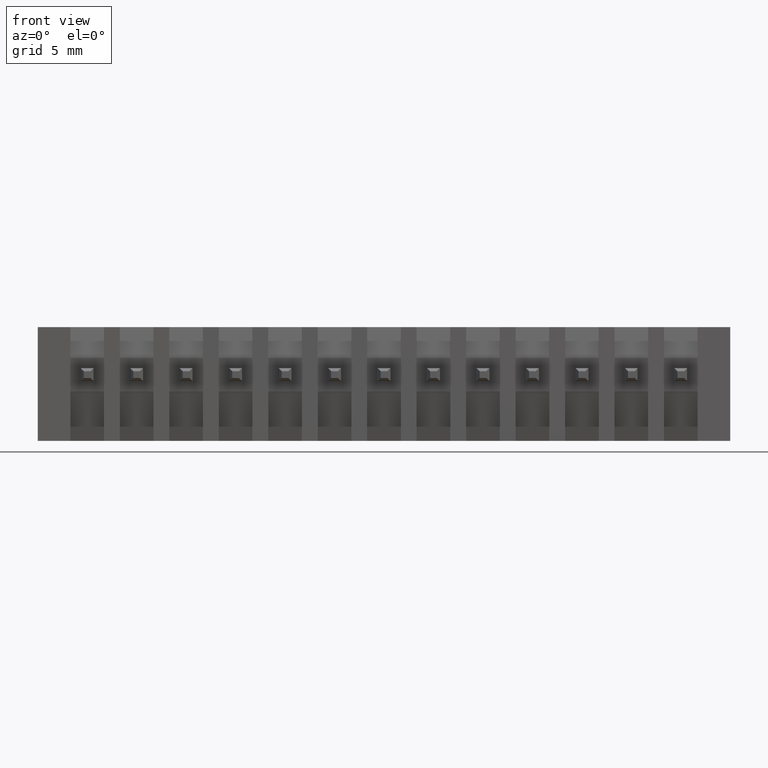
[diagram: clean part render]
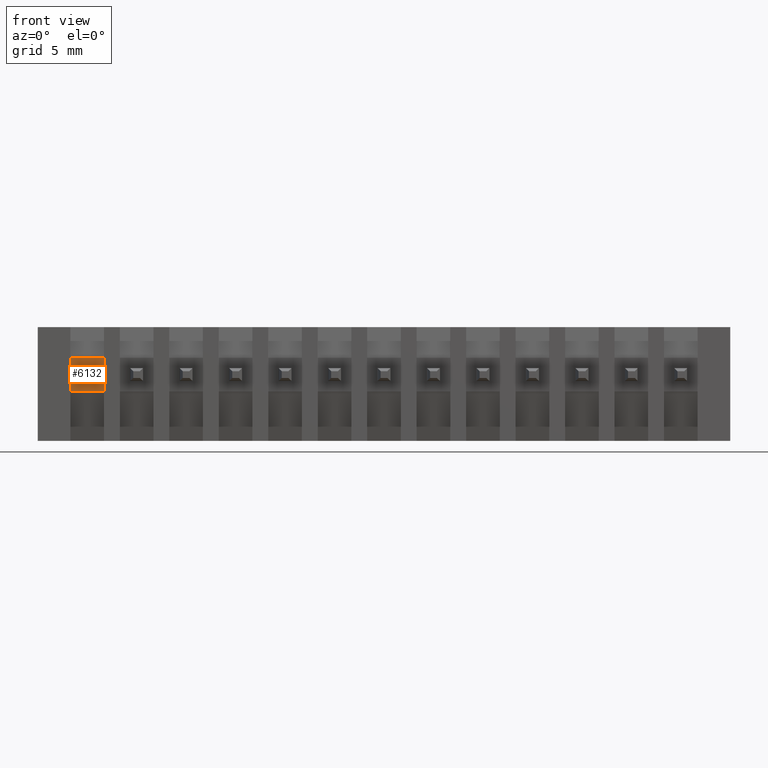
[diagram: same view with one face highlighted and labeled with its STEP entity id]
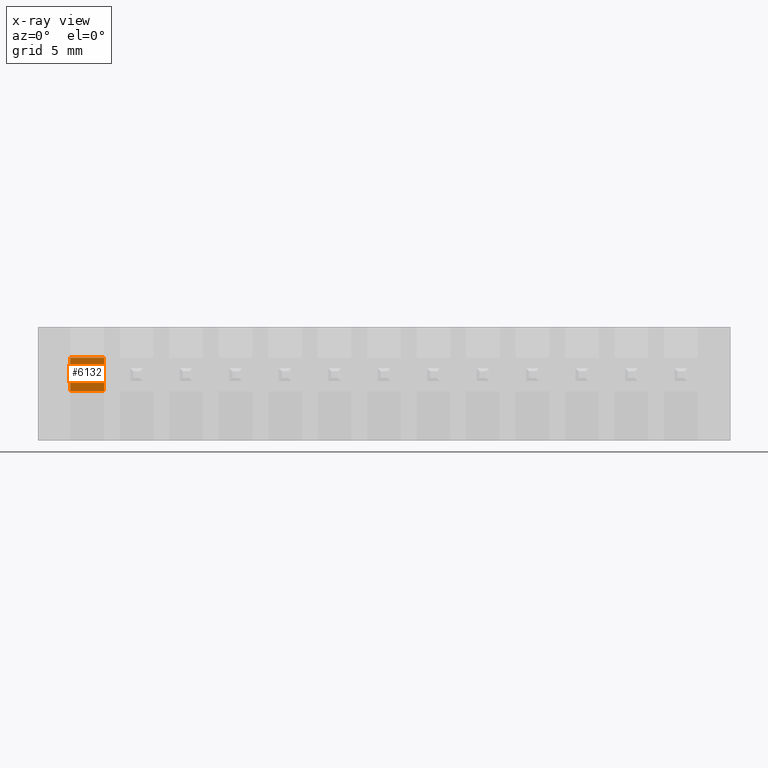
[diagram: x-ray of the same camera — body ghosted, the highlighted face saturated]
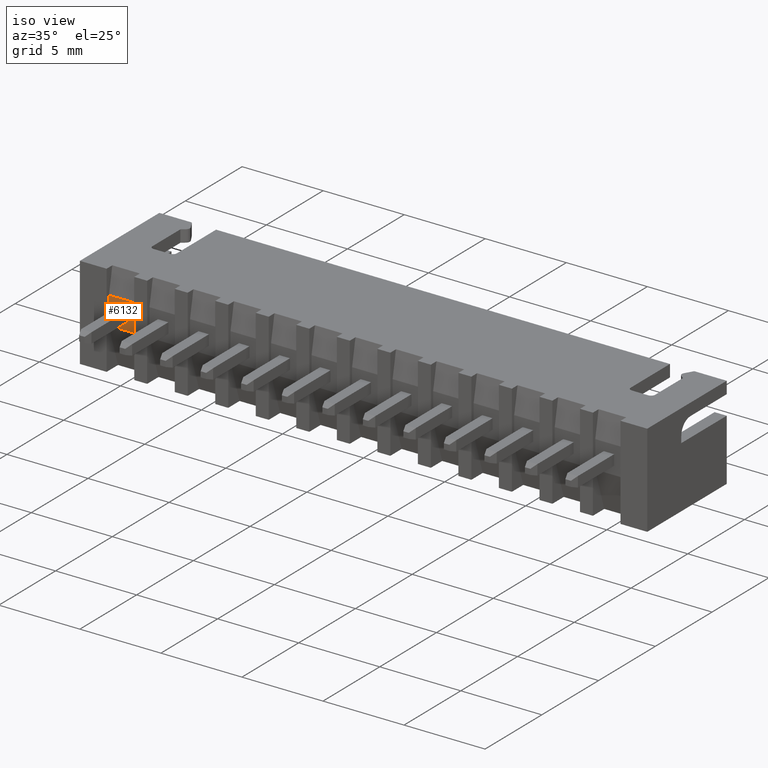
[diagram: same view with one face highlighted and labeled with its STEP entity id]
A machine part, front view. The second image highlights one B-rep face of the part: STEP entity #6132.
The next image is the same camera in x-ray: the body ghosted, the highlighted face saturated — about 0% of this face is hidden behind the body in this view.
A second angle (iso view) of the same face is appended — the face is thin or edge-on in the first view.
In plain terms, the highlighted planar face has unit normal (0, 1, 0).
Its self-contained STEP definition (entity closure, byte-faithful):
#182 = DIRECTION ( 'NONE',  ( -0.000000000000000000, -0.000000000000000000, 1.000000000000000000 ) ) ;
#197 = CARTESIAN_POINT ( 'NONE',  ( -15.31999999999999140, 0.1999999999999994837, 0.1550000000000019695 ) ) ;
#208 = FACE_BOUND ( 'NONE', #5134, .T. ) ;
#450 = DIRECTION ( 'NONE',  ( 1.000000000000000000, 0.000000000000000000, -1.694065894508596241E-16 ) ) ;
#610 = VECTOR ( 'NONE', #4352, 1000.000000000000000 ) ;
#688 = CARTESIAN_POINT ( 'NONE',  ( -15.84999999999998899, 0.1999999999999994837, 1.324999999999999956 ) ) ;
#824 = VECTOR ( 'NONE', #5673, 1000.000000000000000 ) ;
#928 = EDGE_CURVE ( 'NONE', #3737, #1950, #2124, .T. ) ;
#931 = LINE ( 'NONE', #3683, #4581 ) ;
#1004 = DIRECTION ( 'NONE',  ( -0.000000000000000000, -0.000000000000000000, 1.000000000000000000 ) ) ;
#1016 = VECTOR ( 'NONE', #182, 1000.000000000000000 ) ;
#1087 = VERTEX_POINT ( 'NONE', #2388 ) ;
#1151 = DIRECTION ( 'NONE',  ( 0.000000000000000000, 1.000000000000000000, 0.000000000000000000 ) ) ;
#1204 = LINE ( 'NONE', #197, #6160 ) ;
#1243 = ORIENTED_EDGE ( 'NONE', *, *, #5663, .F. ) ;
#1266 = CARTESIAN_POINT ( 'NONE',  ( -14.67999999999998906, 0.1999999999999994837, 0.1550000000000018585 ) ) ;
#1528 = ORIENTED_EDGE ( 'NONE', *, *, #1914, .F. ) ;
#1569 = CARTESIAN_POINT ( 'NONE',  ( -14.14999999999999147, 0.1999999999999994837, 1.324999999999999956 ) ) ;
#1598 = DIRECTION ( 'NONE',  ( 1.000000000000000000, -0.000000000000000000, -0.000000000000000000 ) ) ;
#1679 = ORIENTED_EDGE ( 'NONE', *, *, #6372, .T. ) ;
#1684 = ORIENTED_EDGE ( 'NONE', *, *, #928, .F. ) ;
#1730 = EDGE_CURVE ( 'NONE', #4169, #5988, #5640, .T. ) ;
#1819 = ORIENTED_EDGE ( 'NONE', *, *, #1730, .T. ) ;
#1859 = EDGE_LOOP ( 'NONE', ( #1679, #1684, #1243, #1819 ) ) ;
#1866 = VERTEX_POINT ( 'NONE', #4471 ) ;
#1911 = CARTESIAN_POINT ( 'NONE',  ( -14.14999999999999147, 0.1999999999999994837, 1.324999999999999956 ) ) ;
#1914 = EDGE_CURVE ( 'NONE', #3767, #1866, #3374, .T. ) ;
#1950 = VERTEX_POINT ( 'NONE', #1911 ) ;
#2020 = ORIENTED_EDGE ( 'NONE', *, *, #6407, .F. ) ;
#2110 = LINE ( 'NONE', #5693, #2460 ) ;
#2124 = LINE ( 'NONE', #6248, #2514 ) ;
#2388 = CARTESIAN_POINT ( 'NONE',  ( -15.31999999999999140, 0.1999999999999994837, 0.7949999999999987077 ) ) ;
#2460 = VECTOR ( 'NONE', #4172, 1000.000000000000000 ) ;
#2514 = VECTOR ( 'NONE', #1598, 1000.000000000000000 ) ;
#2574 = EDGE_CURVE ( 'NONE', #1087, #3857, #1204, .T. ) ;
#2711 = DIRECTION ( 'NONE',  ( 0.000000000000000000, -0.000000000000000000, 1.000000000000000000 ) ) ;
#2727 = ORIENTED_EDGE ( 'NONE', *, *, #5549, .F. ) ;
#2740 = CARTESIAN_POINT ( 'NONE',  ( -15.84999999999998899, 0.1999999999999994837, 1.324999999999999956 ) ) ;
#3197 = DIRECTION ( 'NONE',  ( 0.000000000000000000, 0.000000000000000000, -1.000000000000000000 ) ) ;
#3323 = CARTESIAN_POINT ( 'NONE',  ( -15.84999999999998899, 0.1999999999999994837, 1.324999999999999956 ) ) ;
#3347 = FACE_OUTER_BOUND ( 'NONE', #1859, .T. ) ;
#3374 = LINE ( 'NONE', #3724, #610 ) ;
#3378 = ORIENTED_EDGE ( 'NONE', *, *, #2574, .F. ) ;
#3585 = CARTESIAN_POINT ( 'NONE',  ( -14.14999999999999147, 0.1999999999999994837, -0.3750000000000001110 ) ) ;
#3683 = CARTESIAN_POINT ( 'NONE',  ( -15.31999999999999140, 0.1999999999999994837, 0.1550000000000019695 ) ) ;
#3724 = CARTESIAN_POINT ( 'NONE',  ( -14.67999999999998906, 0.1999999999999994837, 0.1550000000000018585 ) ) ;
#3737 = VERTEX_POINT ( 'NONE', #688 ) ;
#3767 = VERTEX_POINT ( 'NONE', #1266 ) ;
#3857 = VERTEX_POINT ( 'NONE', #4504 ) ;
#4169 = VERTEX_POINT ( 'NONE', #5169 ) ;
#4172 = DIRECTION ( 'NONE',  ( -1.000000000000000000, 0.000000000000000000, 3.388131789017192482E-16 ) ) ;
#4260 = PLANE ( 'NONE',  #5131 ) ;
#4352 = DIRECTION ( 'NONE',  ( 0.000000000000000000, -0.000000000000000000, 1.000000000000000000 ) ) ;
#4471 = CARTESIAN_POINT ( 'NONE',  ( -14.67999999999998906, 0.1999999999999994837, 0.7949999999999984857 ) ) ;
#4504 = CARTESIAN_POINT ( 'NONE',  ( -15.31999999999999140, 0.1999999999999994837, 0.1550000000000019695 ) ) ;
#4581 = VECTOR ( 'NONE', #450, 1000.000000000000000 ) ;
#5131 = AXIS2_PLACEMENT_3D ( 'NONE', #2740, #1151, #2711 ) ;
#5134 = EDGE_LOOP ( 'NONE', ( #2727, #1528, #2020, #3378 ) ) ;
#5169 = CARTESIAN_POINT ( 'NONE',  ( -15.84999999999998899, 0.1999999999999994837, -0.3750000000000001110 ) ) ;
#5377 = LINE ( 'NONE', #3323, #1016 ) ;
#5549 = EDGE_CURVE ( 'NONE', #1866, #1087, #2110, .T. ) ;
#5640 = LINE ( 'NONE', #6185, #824 ) ;
#5663 = EDGE_CURVE ( 'NONE', #4169, #3737, #5377, .T. ) ;
#5673 = DIRECTION ( 'NONE',  ( 1.000000000000000000, -0.000000000000000000, -0.000000000000000000 ) ) ;
#5693 = CARTESIAN_POINT ( 'NONE',  ( -15.31999999999999140, 0.1999999999999994837, 0.7949999999999987077 ) ) ;
#5988 = VERTEX_POINT ( 'NONE', #3585 ) ;
#6015 = VECTOR ( 'NONE', #1004, 1000.000000000000000 ) ;
#6132 = ADVANCED_FACE ( 'NONE', ( #3347, #208 ), #4260, .F. ) ;
#6160 = VECTOR ( 'NONE', #3197, 1000.000000000000000 ) ;
#6185 = CARTESIAN_POINT ( 'NONE',  ( -15.84999999999998899, 0.1999999999999994837, -0.3750000000000001110 ) ) ;
#6248 = CARTESIAN_POINT ( 'NONE',  ( -15.84999999999998899, 0.1999999999999994837, 1.324999999999999956 ) ) ;
#6257 = LINE ( 'NONE', #1569, #6015 ) ;
#6372 = EDGE_CURVE ( 'NONE', #5988, #1950, #6257, .T. ) ;
#6407 = EDGE_CURVE ( 'NONE', #3857, #3767, #931, .T. ) ;